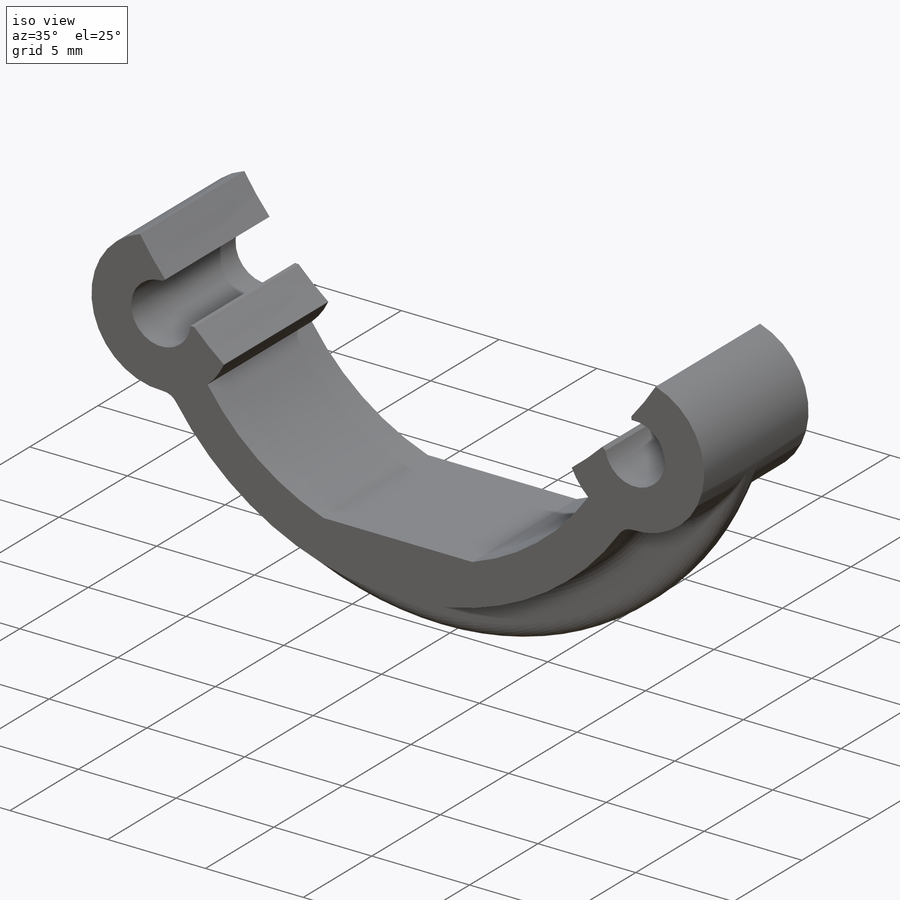
[diagram: iso view]
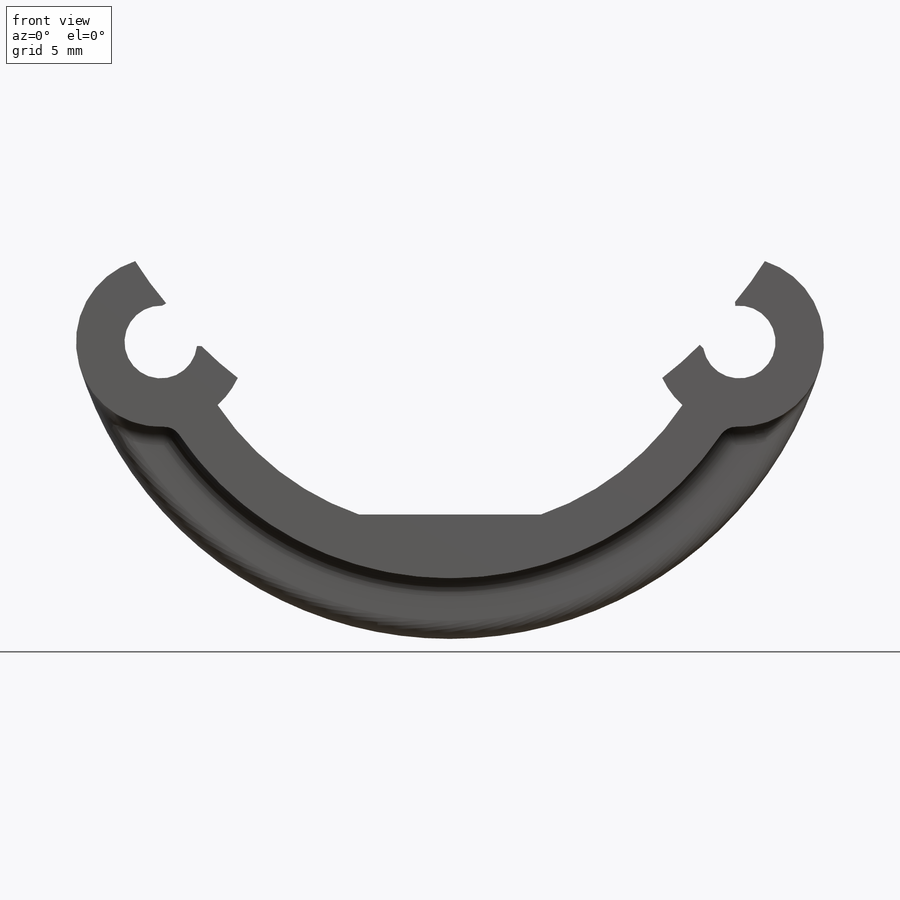
[diagram: front view]
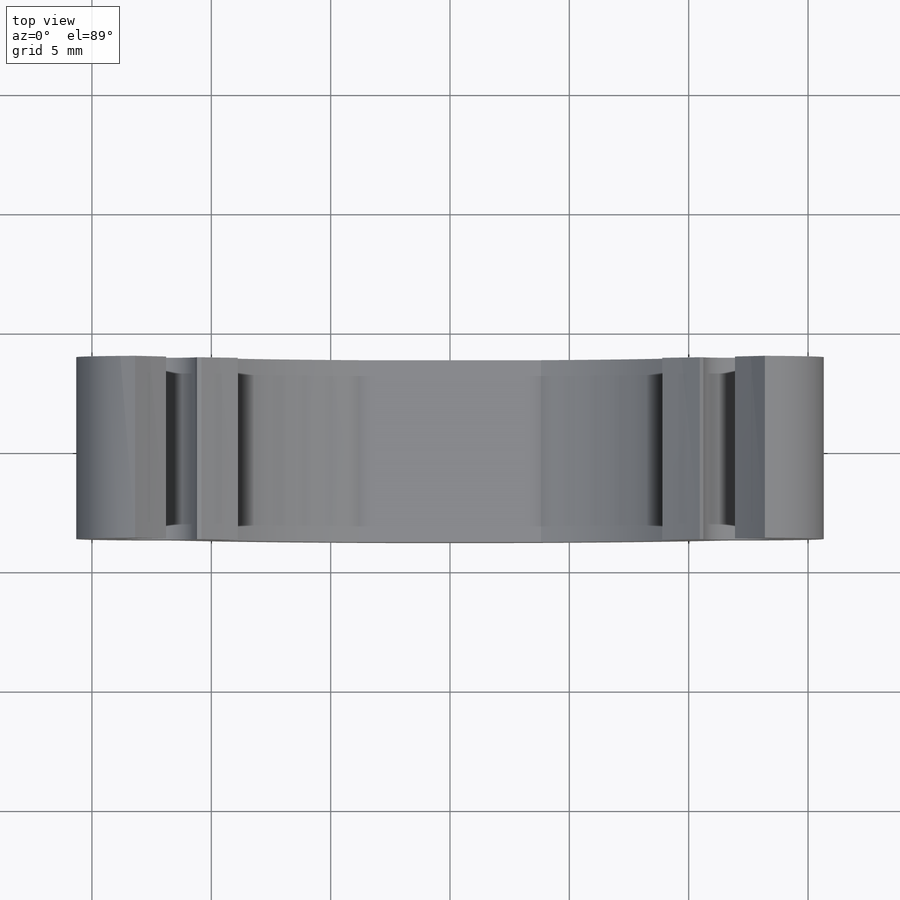
[diagram: top view]
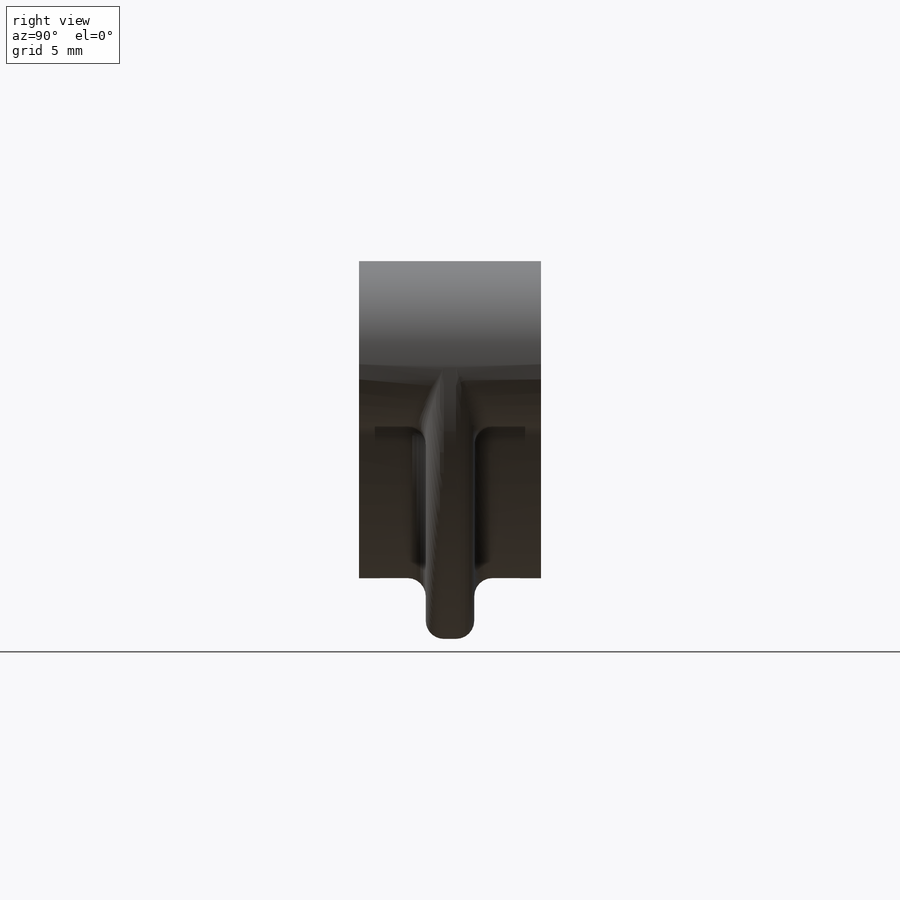
[diagram: right view]
SOLIDWORKS PART (.sldprt)
format: sldprt  version: not decoded by parser v0  size: 440,320 bytes
history: native  units: mm
features: sketch x6, fillet x6, extrude x4, mirror x2, revolve x2, material x1, chamfer x1, plane x1 (+13 scaffold rows collapsed)
feature tree (36):
  scaffold x13  (default folders/planes/origin — collapsed)
  material  "Material <not specified>"
  sketch  "Sketch1"  dims[c1.D1=28.575mm c1.D2=~2.38125mm c1.D9=1.8415mm c2.D2=1.524mm c2.D3=~11.350435mm c3.D3=50.0deg c3.D4=110.0mm c4.D4=50.0deg c4.D6=~4.165291mm c5.D6=65.0deg c5.D8=~4.944191mm c6.D8=65.0deg c6.D9=~5.646008mm c7.D9=160.0deg c8.D9=3.8735mm c8.D5=0.127mm c8.D6=0.254mm c8.D7=2.032mm c8.D8=2.032mm c9.D5=0.381mm]
  extrude  "Boss-Extrude1"  Depth=7.62mm
  sketch  "Sketch2"  dims[D1=~22.848255mm D4=2.032mm D2=1.016mm D3=1.016mm]
  extrude  "Boss-Extrude2"  Depth=7.62mm
  mirror  "Mirror4"
  mirror  "Mirror5"
  sketch  "Sketch7"  dims[D1=2.54mm]
  extrude  "rib"  Depth=2.032mm
  fillet  "Fillet4"  Radius=0.762mm
  fillet  "Fillet5"  Radius=0.762mm
  fillet  "Fillet6"  Radius=0.762mm
  chamfer  "Chamfer1"  Distance=0.254mm Angle=45deg
  sketch  "Sketch3"  dims[D1=7.62mm]
  extrude  "Boss-Extrude3"  [1 undecoded]
  sketch  "Sketch6"  dims[D1=2.54mm D2=2.54mm]
  revolve  "Revolve2"  Angle=360deg
  sketch  "Sketch5"  dims[c1.D1=6.35mm c1.D3=3.175mm c2.D1=~5.35593mm c2.D2=1.27mm c2.D3=6.35mm c3.D2=1.27mm c3.D3=6.985mm c4.D2=2.54mm]
  revolve  "Revolve1"  Angle=360deg
  fillet  "Fillet2"  Radius=0.508mm
  plane  "Plane1"  Offset=23.622mm
  fillet  "Fillet3"  Radius=2.54mm
  fillet  "Fillet1"  Radius=0.381mm
decode coverage: 18 of 21 modeling features carry decoded parameters
note: ~ marks probable driven/reference dimensions
note: 1 parameter value undecoded
note: suppression state not decoded; provenance and decode notes live in map.json
